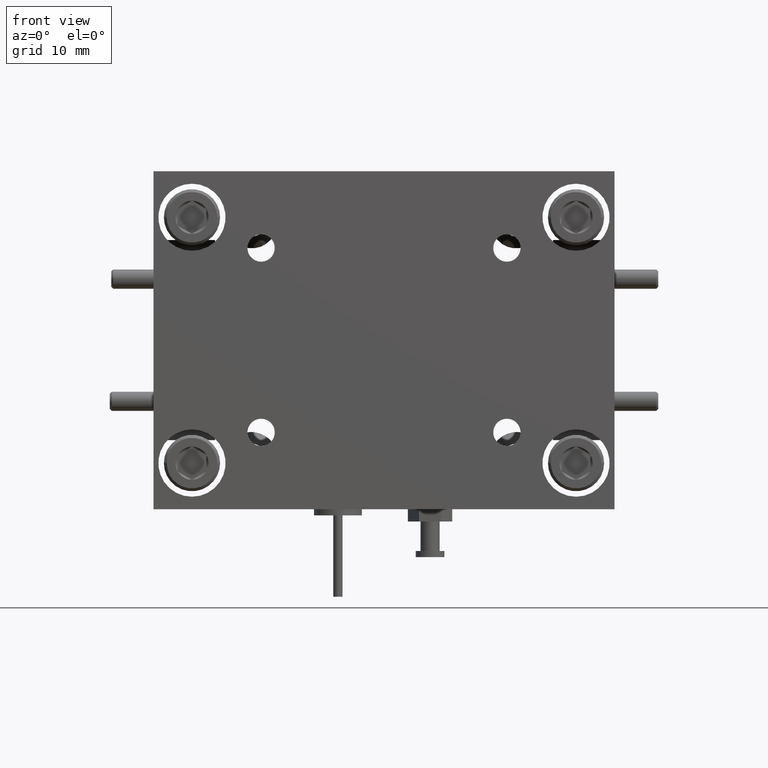
[diagram: clean part render]
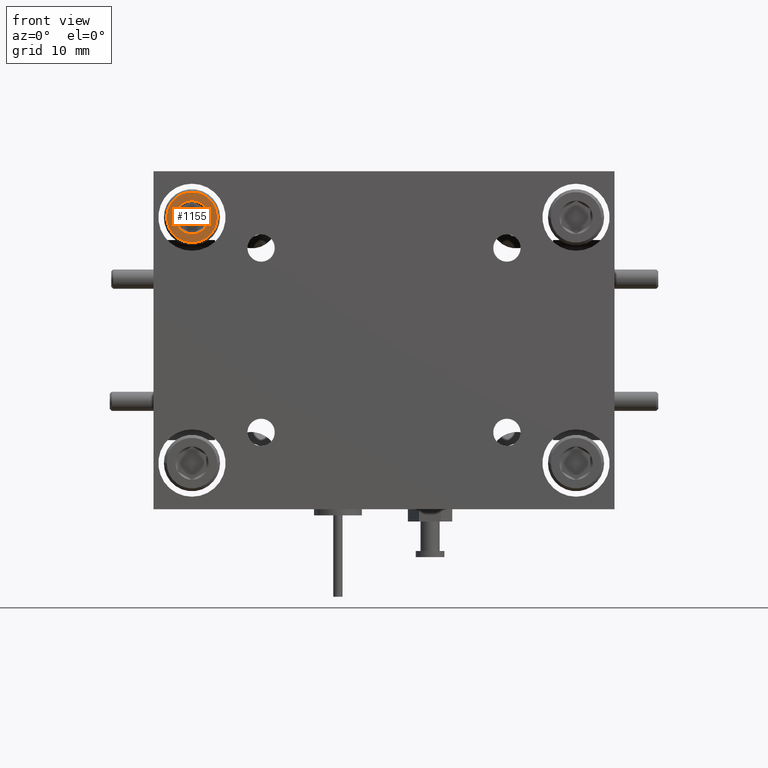
[diagram: same view with one face highlighted and labeled with its STEP entity id]
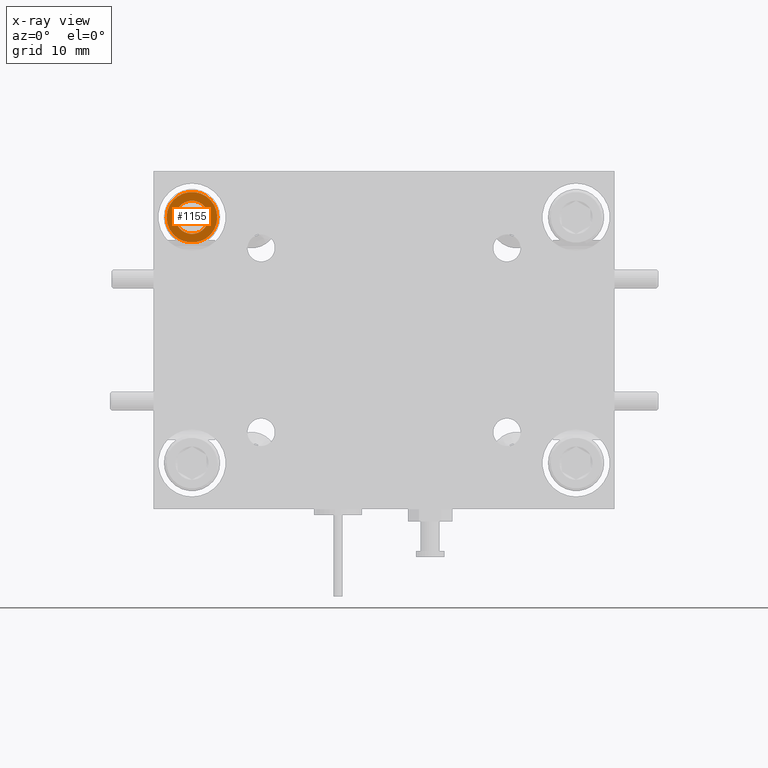
[diagram: x-ray of the same camera — body ghosted, the highlighted face saturated]
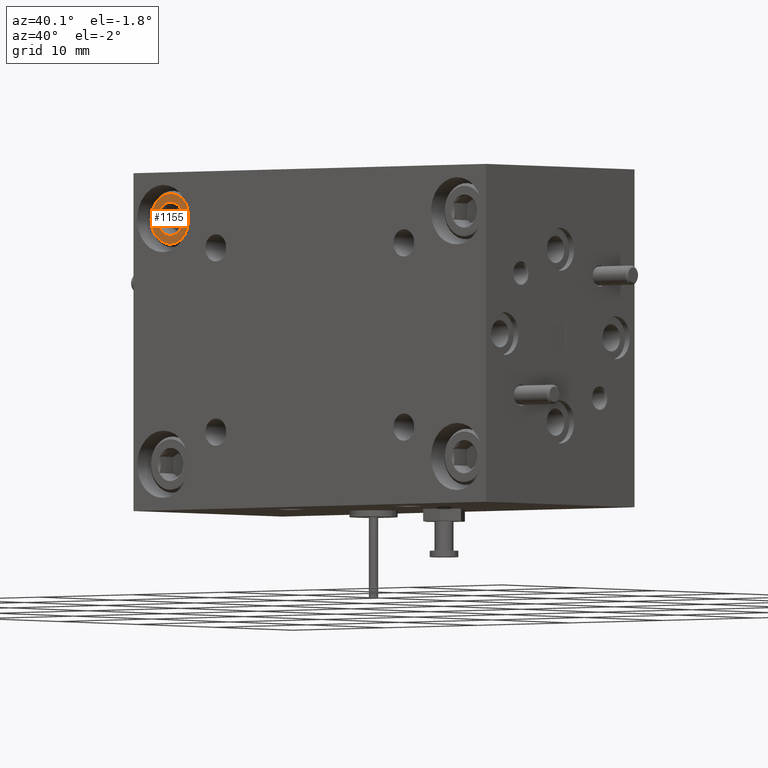
[diagram: same view with one face highlighted and labeled with its STEP entity id]
A machine part, front view. The second image highlights one B-rep face of the part: STEP entity #1155.
The next image is the same camera in x-ray: the body ghosted, the highlighted face saturated — about 0% of this face is hidden behind the body in this view.
A second angle (auxiliary view) of the same face is appended — the face is thin or edge-on in the first view.
In plain terms, the highlighted planar face has unit normal (-0, -1, 0).
Its self-contained STEP definition (entity closure, byte-faithful):
#108 = CARTESIAN_POINT ( 'NONE',  ( -0.4209109036889989700, 0.03800000000000694500, 0.6456399439566157300 ) ) ;
#196 = CIRCLE ( 'NONE', #2766, 0.05412658773652737800 ) ;
#746 = DIRECTION ( 'NONE',  ( -1.387778780781445700E-017, -1.000000000000000000, 2.775557561562890700E-017 ) ) ;
#799 = CIRCLE ( 'NONE', #2376, 0.05412658773652737800 ) ;
#1092 = CARTESIAN_POINT ( 'NONE',  ( -0.4677859036889990300, 0.03800000000000694500, 0.6185766500883519400 ) ) ;
#1155 = ADVANCED_FACE ( 'NONE', ( #1512, #3367 ), #1675, .T. ) ;
#1245 = DIRECTION ( 'NONE',  ( -1.387778780781445700E-017, -1.000000000000000000, 2.775557561562890700E-017 ) ) ;
#1271 = DIRECTION ( 'NONE',  ( -1.000000000000000000, 0.0000000000000000000, 0.0000000000000000000 ) ) ;
#1279 = DIRECTION ( 'NONE',  ( -1.000000000000000000, 0.0000000000000000000, 0.0000000000000000000 ) ) ;
#1512 = FACE_OUTER_BOUND ( 'NONE', #9658, .T. ) ;
#1519 = VERTEX_POINT ( 'NONE', #10703 ) ;
#1657 = CARTESIAN_POINT ( 'NONE',  ( -0.4209109036889991400, 0.03800000000000694500, 0.5915133562200881600 ) ) ;
#1675 = PLANE ( 'NONE',  #3489 ) ;
#1687 = DIRECTION ( 'NONE',  ( -1.000000000000000000, 0.0000000000000000000, 0.0000000000000000000 ) ) ;
#2106 = CARTESIAN_POINT ( 'NONE',  ( -0.4677859036889990300, 0.03800000000000694500, 0.6185766500883519400 ) ) ;
#2221 = VERTEX_POINT ( 'NONE', #108 ) ;
#2227 = CARTESIAN_POINT ( 'NONE',  ( -0.4677859036889990300, 0.03800000000000694500, 0.6185766500883519400 ) ) ;
#2376 = AXIS2_PLACEMENT_3D ( 'NONE', #2106, #4865, #3015 ) ;
#2466 = CARTESIAN_POINT ( 'NONE',  ( -0.4677859036889990300, 0.03800000000000694500, 0.6185766500883519400 ) ) ;
#2560 = CARTESIAN_POINT ( 'NONE',  ( -0.4677859036889990300, 0.03800000000000694500, 0.6185766500883519400 ) ) ;
#2593 = VERTEX_POINT ( 'NONE', #8364 ) ;
#2737 = EDGE_CURVE ( 'NONE', #9603, #11181, #3007, .T. ) ;
#2744 = AXIS2_PLACEMENT_3D ( 'NONE', #10610, #6910, #6989 ) ;
#2766 = AXIS2_PLACEMENT_3D ( 'NONE', #6269, #746, #1687 ) ;
#2791 = AXIS2_PLACEMENT_3D ( 'NONE', #6771, #8579, #1279 ) ;
#3007 = CIRCLE ( 'NONE', #10638, 0.05412658773652737800 ) ;
#3015 = DIRECTION ( 'NONE',  ( -1.000000000000000000, 0.0000000000000000000, 0.0000000000000000000 ) ) ;
#3341 = DIRECTION ( 'NONE',  ( -1.000000000000000000, 1.387778780781445700E-017, -3.347732047909899100E-018 ) ) ;
#3363 = EDGE_CURVE ( 'NONE', #3729, #2593, #8638, .T. ) ;
#3367 = FACE_BOUND ( 'NONE', #11659, .T. ) ;
#3428 = DIRECTION ( 'NONE',  ( -1.387778780781445700E-017, -1.000000000000000000, 2.775557561562890400E-017 ) ) ;
#3489 = AXIS2_PLACEMENT_3D ( 'NONE', #2466, #3428, #3341 ) ;
#3653 = CARTESIAN_POINT ( 'NONE',  ( -0.3854359036889990500, 0.03800000000000694500, 0.6185766500883519400 ) ) ;
#3694 = DIRECTION ( 'NONE',  ( -1.000000000000000000, 0.0000000000000000000, 0.0000000000000000000 ) ) ;
#3729 = VERTEX_POINT ( 'NONE', #6820 ) ;
#3910 = ORIENTED_EDGE ( 'NONE', *, *, #5413, .F. ) ;
#4072 = CARTESIAN_POINT ( 'NONE',  ( -0.5146609036889990800, 0.03800000000000694500, 0.5915133562200882700 ) ) ;
#4077 = ORIENTED_EDGE ( 'NONE', *, *, #3363, .F. ) ;
#4571 = DIRECTION ( 'NONE',  ( -1.387778780781445700E-017, -1.000000000000000000, 2.775557561562890700E-017 ) ) ;
#4865 = DIRECTION ( 'NONE',  ( -1.387778780781445700E-017, -1.000000000000000000, 2.775557561562890700E-017 ) ) ;
#4999 = DIRECTION ( 'NONE',  ( -1.387778780781445700E-017, -1.000000000000000000, 2.775557561562890700E-017 ) ) ;
#5089 = ORIENTED_EDGE ( 'NONE', *, *, #7867, .T. ) ;
#5173 = CARTESIAN_POINT ( 'NONE',  ( -0.4677859036889990300, 0.03800000000000694500, 0.6185766500883519400 ) ) ;
#5276 = EDGE_CURVE ( 'NONE', #8816, #6343, #10318, .T. ) ;
#5413 = EDGE_CURVE ( 'NONE', #1519, #3729, #196, .T. ) ;
#5713 = EDGE_CURVE ( 'NONE', #2593, #9603, #10887, .T. ) ;
#5767 = AXIS2_PLACEMENT_3D ( 'NONE', #1092, #4571, #3694 ) ;
#6269 = CARTESIAN_POINT ( 'NONE',  ( -0.4677859036889990300, 0.03800000000000694500, 0.6185766500883519400 ) ) ;
#6343 = VERTEX_POINT ( 'NONE', #8247 ) ;
#6771 = CARTESIAN_POINT ( 'NONE',  ( -0.4677859036889990300, 0.03800000000000694500, 0.6185766500883519400 ) ) ;
#6820 = CARTESIAN_POINT ( 'NONE',  ( -0.5146609036889990800, 0.03800000000000694500, 0.6456399439566157300 ) ) ;
#6910 = DIRECTION ( 'NONE',  ( -1.387778780781445700E-017, -1.000000000000000000, 2.775557561562890700E-017 ) ) ;
#6989 = DIRECTION ( 'NONE',  ( -1.000000000000000000, 0.0000000000000000000, 0.0000000000000000000 ) ) ;
#7129 = AXIS2_PLACEMENT_3D ( 'NONE', #8663, #1245, #7801 ) ;
#7171 = VERTEX_POINT ( 'NONE', #1657 ) ;
#7348 = ORIENTED_EDGE ( 'NONE', *, *, #5276, .T. ) ;
#7473 = EDGE_CURVE ( 'NONE', #7171, #2221, #11426, .T. ) ;
#7479 = AXIS2_PLACEMENT_3D ( 'NONE', #5173, #11653, #7932 ) ;
#7592 = ORIENTED_EDGE ( 'NONE', *, *, #7473, .F. ) ;
#7801 = DIRECTION ( 'NONE',  ( -1.000000000000000000, 0.0000000000000000000, 0.0000000000000000000 ) ) ;
#7867 = EDGE_CURVE ( 'NONE', #6343, #8816, #8531, .T. ) ;
#7932 = DIRECTION ( 'NONE',  ( -1.000000000000000000, 0.0000000000000000000, 0.0000000000000000000 ) ) ;
#8127 = ORIENTED_EDGE ( 'NONE', *, *, #2737, .F. ) ;
#8247 = CARTESIAN_POINT ( 'NONE',  ( -0.5501359036889990100, 0.03800000000000694500, 0.6185766500883519400 ) ) ;
#8364 = CARTESIAN_POINT ( 'NONE',  ( -0.5219124914255264300, 0.03800000000000694500, 0.6185766500883519400 ) ) ;
#8373 = ORIENTED_EDGE ( 'NONE', *, *, #10073, .F. ) ;
#8531 = CIRCLE ( 'NONE', #2744, 0.08234999999999993700 ) ;
#8579 = DIRECTION ( 'NONE',  ( -1.387778780781445700E-017, -1.000000000000000000, 2.775557561562890700E-017 ) ) ;
#8638 = CIRCLE ( 'NONE', #9337, 0.05412658773652737800 ) ;
#8663 = CARTESIAN_POINT ( 'NONE',  ( -0.4677859036889990300, 0.03800000000000694500, 0.6185766500883519400 ) ) ;
#8816 = VERTEX_POINT ( 'NONE', #3653 ) ;
#8956 = DIRECTION ( 'NONE',  ( -1.000000000000000000, 0.0000000000000000000, 0.0000000000000000000 ) ) ;
#9337 = AXIS2_PLACEMENT_3D ( 'NONE', #2560, #11746, #8956 ) ;
#9603 = VERTEX_POINT ( 'NONE', #4072 ) ;
#9658 = EDGE_LOOP ( 'NONE', ( #7348, #5089 ) ) ;
#10004 = ORIENTED_EDGE ( 'NONE', *, *, #10460, .F. ) ;
#10073 = EDGE_CURVE ( 'NONE', #11181, #7171, #799, .T. ) ;
#10318 = CIRCLE ( 'NONE', #7479, 0.08234999999999993700 ) ;
#10460 = EDGE_CURVE ( 'NONE', #2221, #1519, #10474, .T. ) ;
#10474 = CIRCLE ( 'NONE', #5767, 0.05412658773652737800 ) ;
#10610 = CARTESIAN_POINT ( 'NONE',  ( -0.4677859036889990300, 0.03800000000000694500, 0.6185766500883519400 ) ) ;
#10638 = AXIS2_PLACEMENT_3D ( 'NONE', #2227, #4999, #1271 ) ;
#10703 = CARTESIAN_POINT ( 'NONE',  ( -0.4677859036889990300, 0.03800000000000694500, 0.6727032378248795100 ) ) ;
#10887 = CIRCLE ( 'NONE', #2791, 0.05412658773652737800 ) ;
#11181 = VERTEX_POINT ( 'NONE', #11227 ) ;
#11227 = CARTESIAN_POINT ( 'NONE',  ( -0.4677859036889990300, 0.03800000000000694500, 0.5644500623518246000 ) ) ;
#11426 = CIRCLE ( 'NONE', #7129, 0.05412658773652737800 ) ;
#11454 = ORIENTED_EDGE ( 'NONE', *, *, #5713, .F. ) ;
#11653 = DIRECTION ( 'NONE',  ( -1.387778780781445700E-017, -1.000000000000000000, 2.775557561562890700E-017 ) ) ;
#11659 = EDGE_LOOP ( 'NONE', ( #8127, #11454, #4077, #3910, #10004, #7592, #8373 ) ) ;
#11746 = DIRECTION ( 'NONE',  ( -1.387778780781445700E-017, -1.000000000000000000, 2.775557561562890700E-017 ) ) ;